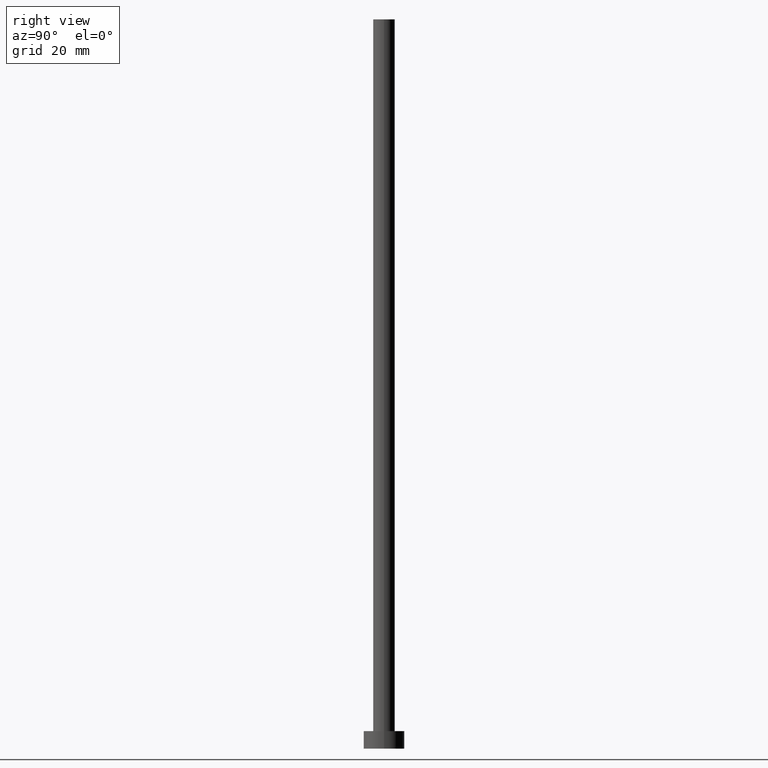
[diagram: clean part render]
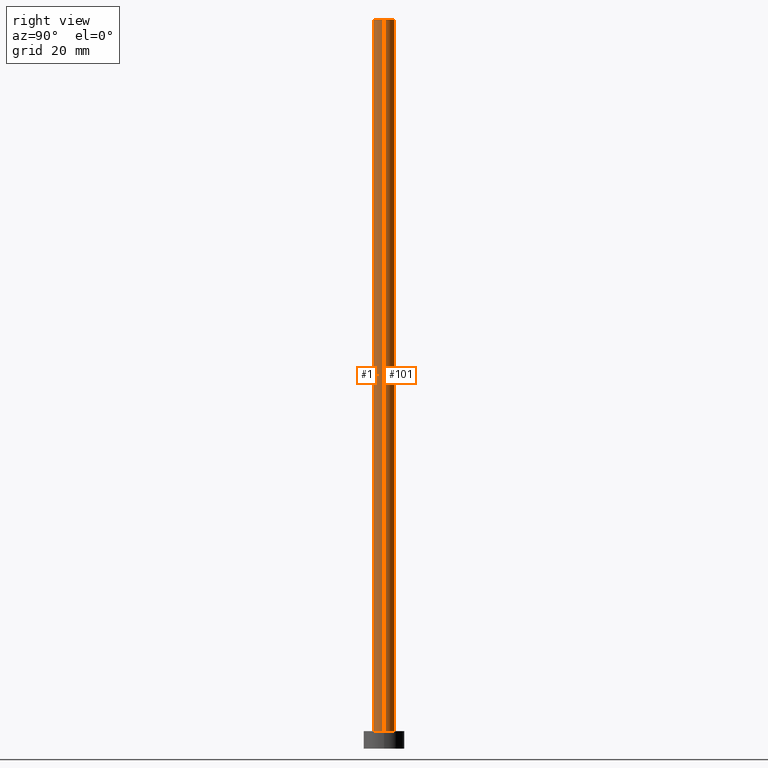
[diagram: same view with one multi-face feature highlighted, each face labeled with its STEP entity id]
A machine part, right view. The highlighted faces form ONE feature: a constant-radius fillet chain: 2 tangent blend faces with common blend radius 1.85 mm. The faces share edges in the B-rep.
Their STEP definitions:
[1] entity #101 (Cylinder):
#3 = DIRECTION ( 'NONE',  ( 0.000000000000000000, 0.000000000000000000, 1.000000000000000000 ) ) ;
#5 = CIRCLE ( 'NONE', #199, 1.850000000000000089 ) ;
#9 = EDGE_LOOP ( 'NONE', ( #91, #26, #219, #108 ) ) ;
#19 = CARTESIAN_POINT ( 'NONE',  ( 1.850000000000000089, 2.265596578422602607E-16, 3.000000000000000000 ) ) ;
#21 = CARTESIAN_POINT ( 'NONE',  ( -1.850000000000000089, 0.000000000000000000, 125.0000000000000000 ) ) ;
#23 = CIRCLE ( 'NONE', #204, 1.850000000000000089 ) ;
#26 = ORIENTED_EDGE ( 'NONE', *, *, #236, .T. ) ;
#31 = CARTESIAN_POINT ( 'NONE',  ( 1.850000000000000089, 2.265596578422602607E-16, 125.0000000000000000 ) ) ;
#39 = AXIS2_PLACEMENT_3D ( 'NONE', #202, #73, #185 ) ;
#51 = CARTESIAN_POINT ( 'NONE',  ( 1.850000000000000089, 2.265596578422602607E-16, 125.0000000000000000 ) ) ;
#52 = EDGE_CURVE ( 'NONE', #132, #70, #5, .T. ) ;
#64 = DIRECTION ( 'NONE',  ( -0.000000000000000000, -0.000000000000000000, -1.000000000000000000 ) ) ;
#70 = VERTEX_POINT ( 'NONE', #139 ) ;
#73 = DIRECTION ( 'NONE',  ( -0.000000000000000000, -0.000000000000000000, -1.000000000000000000 ) ) ;
#85 = DIRECTION ( 'NONE',  ( 1.000000000000000000, 0.000000000000000000, 0.000000000000000000 ) ) ;
#91 = ORIENTED_EDGE ( 'NONE', *, *, #155, .F. ) ;
#100 = DIRECTION ( 'NONE',  ( 0.000000000000000000, 0.000000000000000000, 1.000000000000000000 ) ) ;
#101 = ADVANCED_FACE ( 'NONE', ( #133 ), #113, .T. ) ;
#108 = ORIENTED_EDGE ( 'NONE', *, *, #148, .F. ) ;
#113 = CYLINDRICAL_SURFACE ( 'NONE', #39, 1.850000000000000089 ) ;
#115 = VECTOR ( 'NONE', #64, 1000.000000000000000 ) ;
#127 = CARTESIAN_POINT ( 'NONE',  ( 0.000000000000000000, 0.000000000000000000, 125.0000000000000000 ) ) ;
#130 = VECTOR ( 'NONE', #254, 1000.000000000000000 ) ;
#132 = VERTEX_POINT ( 'NONE', #19 ) ;
#133 = FACE_OUTER_BOUND ( 'NONE', #9, .T. ) ;
#139 = CARTESIAN_POINT ( 'NONE',  ( -1.850000000000000089, 0.000000000000000000, 3.000000000000000000 ) ) ;
#148 = EDGE_CURVE ( 'NONE', #181, #70, #197, .T. ) ;
#155 = EDGE_CURVE ( 'NONE', #243, #181, #23, .T. ) ;
#162 = CARTESIAN_POINT ( 'NONE',  ( -1.850000000000000089, 0.000000000000000000, 125.0000000000000000 ) ) ;
#178 = LINE ( 'NONE', #31, #130 ) ;
#181 = VERTEX_POINT ( 'NONE', #162 ) ;
#185 = DIRECTION ( 'NONE',  ( -1.000000000000000000, 0.000000000000000000, 0.000000000000000000 ) ) ;
#193 = DIRECTION ( 'NONE',  ( 1.000000000000000000, 0.000000000000000000, 0.000000000000000000 ) ) ;
#197 = LINE ( 'NONE', #21, #115 ) ;
#199 = AXIS2_PLACEMENT_3D ( 'NONE', #207, #100, #193 ) ;
#202 = CARTESIAN_POINT ( 'NONE',  ( 0.000000000000000000, 0.000000000000000000, 125.0000000000000000 ) ) ;
#204 = AXIS2_PLACEMENT_3D ( 'NONE', #127, #3, #85 ) ;
#207 = CARTESIAN_POINT ( 'NONE',  ( 0.000000000000000000, 0.000000000000000000, 3.000000000000000000 ) ) ;
#219 = ORIENTED_EDGE ( 'NONE', *, *, #52, .T. ) ;
#236 = EDGE_CURVE ( 'NONE', #243, #132, #178, .T. ) ;
#243 = VERTEX_POINT ( 'NONE', #51 ) ;
#254 = DIRECTION ( 'NONE',  ( -0.000000000000000000, -0.000000000000000000, -1.000000000000000000 ) ) ;
[2] entity #1 (Cylinder):
#1 = ADVANCED_FACE ( 'NONE', ( #8 ), #69, .T. ) ;
#6 = ORIENTED_EDGE ( 'NONE', *, *, #148, .T. ) ;
#8 = FACE_OUTER_BOUND ( 'NONE', #87, .T. ) ;
#19 = CARTESIAN_POINT ( 'NONE',  ( 1.850000000000000089, 2.265596578422602607E-16, 3.000000000000000000 ) ) ;
#21 = CARTESIAN_POINT ( 'NONE',  ( -1.850000000000000089, 0.000000000000000000, 125.0000000000000000 ) ) ;
#27 = EDGE_CURVE ( 'NONE', #181, #243, #145, .T. ) ;
#31 = CARTESIAN_POINT ( 'NONE',  ( 1.850000000000000089, 2.265596578422602607E-16, 125.0000000000000000 ) ) ;
#45 = DIRECTION ( 'NONE',  ( -0.000000000000000000, -0.000000000000000000, -1.000000000000000000 ) ) ;
#51 = CARTESIAN_POINT ( 'NONE',  ( 1.850000000000000089, 2.265596578422602607E-16, 125.0000000000000000 ) ) ;
#60 = CIRCLE ( 'NONE', #253, 1.850000000000000089 ) ;
#62 = AXIS2_PLACEMENT_3D ( 'NONE', #221, #45, #159 ) ;
#64 = DIRECTION ( 'NONE',  ( -0.000000000000000000, -0.000000000000000000, -1.000000000000000000 ) ) ;
#69 = CYLINDRICAL_SURFACE ( 'NONE', #62, 1.850000000000000089 ) ;
#70 = VERTEX_POINT ( 'NONE', #139 ) ;
#87 = EDGE_LOOP ( 'NONE', ( #126, #244, #6, #111 ) ) ;
#98 = DIRECTION ( 'NONE',  ( 1.000000000000000000, 0.000000000000000000, 0.000000000000000000 ) ) ;
#103 = DIRECTION ( 'NONE',  ( 0.000000000000000000, 0.000000000000000000, 1.000000000000000000 ) ) ;
#111 = ORIENTED_EDGE ( 'NONE', *, *, #195, .T. ) ;
#115 = VECTOR ( 'NONE', #64, 1000.000000000000000 ) ;
#126 = ORIENTED_EDGE ( 'NONE', *, *, #236, .F. ) ;
#130 = VECTOR ( 'NONE', #254, 1000.000000000000000 ) ;
#132 = VERTEX_POINT ( 'NONE', #19 ) ;
#139 = CARTESIAN_POINT ( 'NONE',  ( -1.850000000000000089, 0.000000000000000000, 3.000000000000000000 ) ) ;
#140 = CARTESIAN_POINT ( 'NONE',  ( 0.000000000000000000, 0.000000000000000000, 3.000000000000000000 ) ) ;
#142 = DIRECTION ( 'NONE',  ( 1.000000000000000000, 0.000000000000000000, 0.000000000000000000 ) ) ;
#145 = CIRCLE ( 'NONE', #157, 1.850000000000000089 ) ;
#148 = EDGE_CURVE ( 'NONE', #181, #70, #197, .T. ) ;
#157 = AXIS2_PLACEMENT_3D ( 'NONE', #160, #230, #98 ) ;
#159 = DIRECTION ( 'NONE',  ( -1.000000000000000000, 0.000000000000000000, 0.000000000000000000 ) ) ;
#160 = CARTESIAN_POINT ( 'NONE',  ( 0.000000000000000000, 0.000000000000000000, 125.0000000000000000 ) ) ;
#162 = CARTESIAN_POINT ( 'NONE',  ( -1.850000000000000089, 0.000000000000000000, 125.0000000000000000 ) ) ;
#178 = LINE ( 'NONE', #31, #130 ) ;
#181 = VERTEX_POINT ( 'NONE', #162 ) ;
#195 = EDGE_CURVE ( 'NONE', #70, #132, #60, .T. ) ;
#197 = LINE ( 'NONE', #21, #115 ) ;
#221 = CARTESIAN_POINT ( 'NONE',  ( 0.000000000000000000, 0.000000000000000000, 125.0000000000000000 ) ) ;
#230 = DIRECTION ( 'NONE',  ( 0.000000000000000000, 0.000000000000000000, 1.000000000000000000 ) ) ;
#236 = EDGE_CURVE ( 'NONE', #243, #132, #178, .T. ) ;
#243 = VERTEX_POINT ( 'NONE', #51 ) ;
#244 = ORIENTED_EDGE ( 'NONE', *, *, #27, .F. ) ;
#253 = AXIS2_PLACEMENT_3D ( 'NONE', #140, #103, #142 ) ;
#254 = DIRECTION ( 'NONE',  ( -0.000000000000000000, -0.000000000000000000, -1.000000000000000000 ) ) ;